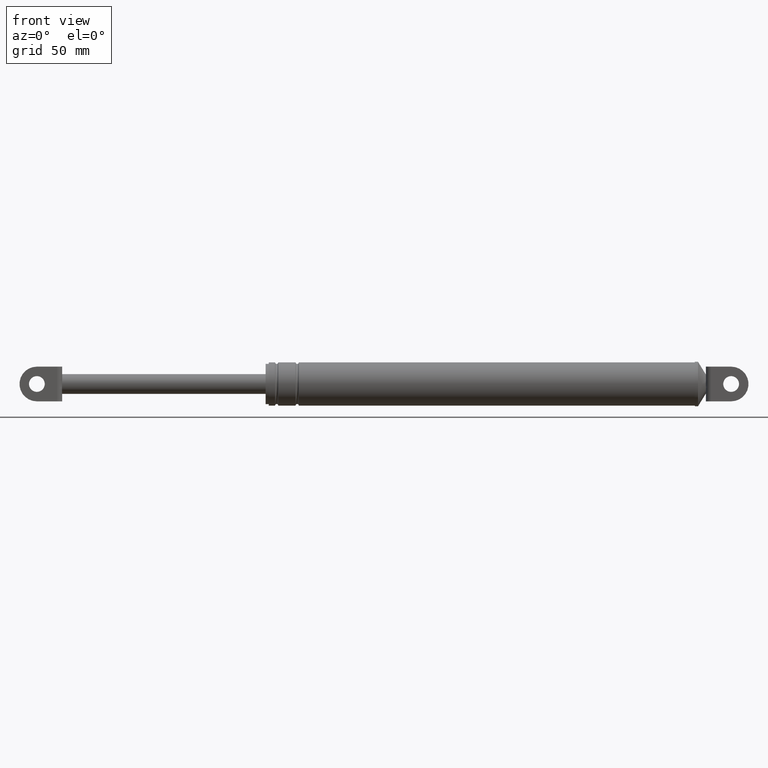
[diagram: clean part render]
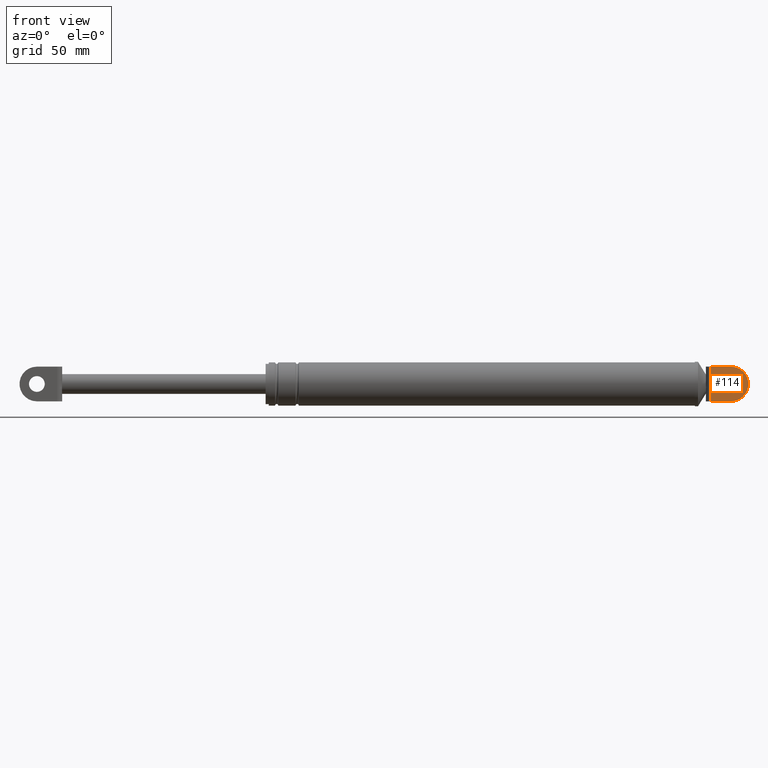
[diagram: same view with one face highlighted and labeled with its STEP entity id]
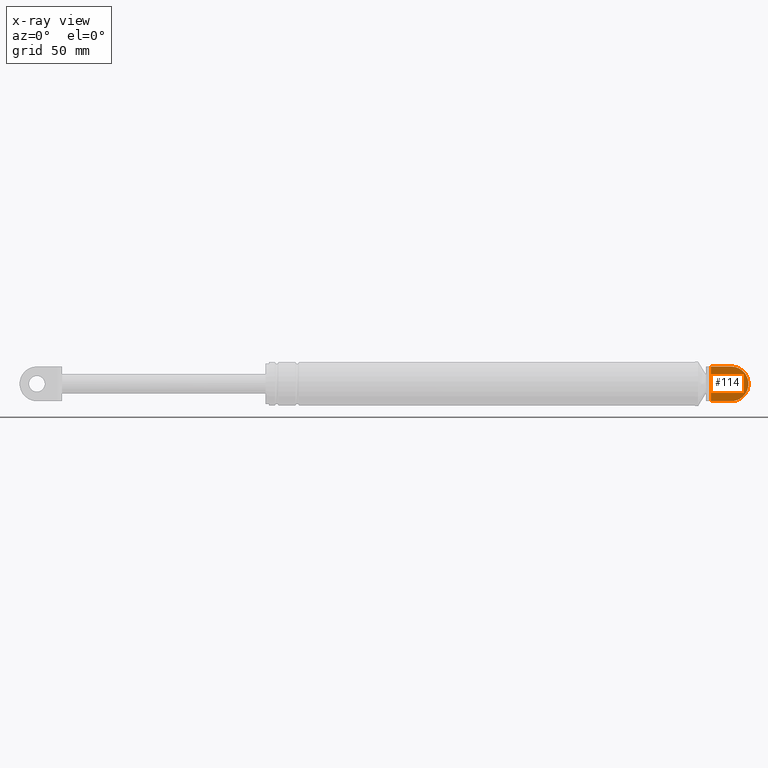
[diagram: x-ray of the same camera — body ghosted, the highlighted face saturated]
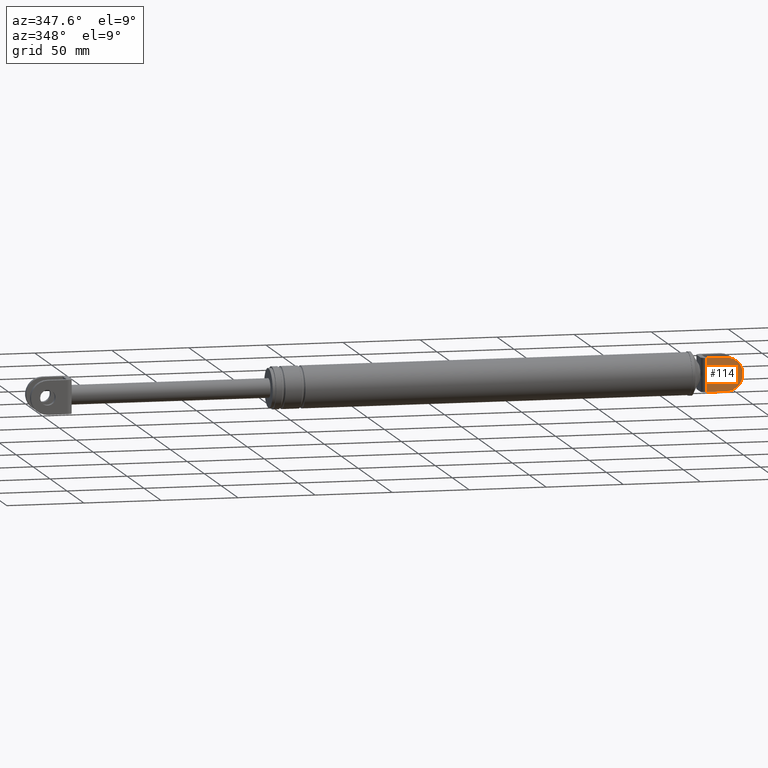
[diagram: same view with one face highlighted and labeled with its STEP entity id]
A machine part, front view. The second image highlights one B-rep face of the part: STEP entity #114.
The next image is the same camera in x-ray: the body ghosted, the highlighted face saturated — about 0% of this face is hidden behind the body in this view.
A second angle (auxiliary view) of the same face is appended — the face is thin or edge-on in the first view.
In plain terms, the highlighted planar face has unit normal (0, -1, 0).
Its self-contained STEP definition (entity closure, byte-faithful):
#114=ADVANCED_FACE('',(#198,#199),#197,.T.);
#197=PLANE('',#840);
#198=FACE_OUTER_BOUND('',#841,.T.);
#199=FACE_BOUND('',#842,.T.);
#837=CARTESIAN_POINT('',(4.15452151137E+002,-8.69999700000E+000,1.76528344356E+002));
#838=DIRECTION('',(0.00000000000E+000,-1.00000000000E+000,0.00000000000E+000));
#839=DIRECTION('',(1.00000000000E+000,0.00000000000E+000,0.00000000000E+000));
#840=AXIS2_PLACEMENT_3D('',#837,#838,#839);
#841=EDGE_LOOP('',(#2119,#2120,#2121,#2122,#2123,#2124));
#842=EDGE_LOOP('',(#2125,#2126));
#2119=ORIENTED_EDGE('',*,*,#2430,.F.);
#2120=ORIENTED_EDGE('',*,*,#2431,.T.);
#2121=ORIENTED_EDGE('',*,*,#2432,.T.);
#2122=ORIENTED_EDGE('',*,*,#2433,.T.);
#2123=ORIENTED_EDGE('',*,*,#2434,.T.);
#2124=ORIENTED_EDGE('',*,*,#2435,.T.);
#2125=ORIENTED_EDGE('',*,*,#2436,.F.);
#2126=ORIENTED_EDGE('',*,*,#2437,.F.);
#2430=EDGE_CURVE('',#2651,#2652,#2653,.T.);
#2431=EDGE_CURVE('',#2651,#2659,#2660,.T.);
#2432=EDGE_CURVE('',#2659,#2666,#2667,.T.);
#2433=EDGE_CURVE('',#2666,#2673,#2674,.T.);
#2434=EDGE_CURVE('',#2673,#2680,#2681,.T.);
#2435=EDGE_CURVE('',#2680,#2652,#2687,.T.);
#2436=EDGE_CURVE('',#2693,#2694,#2695,.T.);
#2437=EDGE_CURVE('',#2694,#2693,#2701,.T.);
#2651=VERTEX_POINT('',#3664);
#2652=VERTEX_POINT('',#3665);
#2653=LINE('',#3666,#3667);
#2659=VERTEX_POINT('',#3669);
#2660=LINE('',#3670,#3671);
#2666=VERTEX_POINT('',#3673);
#2667=(BOUNDED_CURVE() B_SPLINE_CURVE(3,(#3674,#3675,#3676,#3677,#3678,#3679,#3680,#3681,#3682,#3683),.UNSPECIFIED.,.F.,.F.) B_SPLINE_CURVE_WITH_KNOTS((4,2,2,2,4),(0.00000000000E+000,1.19890467989E-003,2.39780935978E-003,3.59671403967E-003,4.79561871955E-003),.UNSPECIFIED.) CURVE() GEOMETRIC_REPRESENTATION_ITEM() RATIONAL_B_SPLINE_CURVE((1.00000000000E+000,1.00000000000E+000,1.00000000000E+000,1.00000000000E+000,1.00000000000E+000,1.00000000000E+000,1.00000000000E+000,1.00000000000E+000,1.00000000000E+000,1.00000000000E+000)) REPRESENTATION_ITEM('') );
#2673=VERTEX_POINT('',#3684);
#2674=LINE('',#3685,#3686);
#2680=VERTEX_POINT('',#3688);
#2681=LINE('',#3689,#3690);
#2687=CIRCLE('',#3695,1.10000000000E+001);
#2693=VERTEX_POINT('',#3696);
#2694=VERTEX_POINT('',#3697);
#2695=CIRCLE('',#3701,5.00000000000E+000);
#2701=CIRCLE('',#3705,5.00000000000E+000);
#3664=CARTESIAN_POINT('',(4.17875390861E+002,-8.69999700000E+000,2.00728345508E+002));
#3665=CARTESIAN_POINT('',(4.30675389901E+002,-8.69999700000E+000,2.00728345508E+002));
#3666=CARTESIAN_POINT('',(4.17875390861E+002,-8.69999700000E+000,2.00728345508E+002));
#3667=VECTOR('',#3668,1.27999990401E+001);
#3668=DIRECTION('',(1.00000000000E+000,0.00000000000E+000,0.00000000000E+000));
#3669=CARTESIAN_POINT('',(4.17875390861E+002,-8.69999700000E+000,1.92126268150E+002));
#3670=CARTESIAN_POINT('',(4.17875390861E+002,-8.69999700000E+000,2.00728345508E+002));
#3671=VECTOR('',#3672,8.60207735738E+000);
#3672=DIRECTION('',(0.00000000000E+000,0.00000000000E+000,-1.00000000000E+000));
#3673=CARTESIAN_POINT('',(4.17875390861E+002,-8.69999700000E+000,1.87330422865E+002));
#3674=CARTESIAN_POINT('',(4.17875390861E+002,-8.69999700000E+000,1.92126268150E+002));
#3675=CARTESIAN_POINT('',(4.17875390861E+002,-8.69999700000E+000,1.91726612064E+002));
#3676=CARTESIAN_POINT('',(4.17863765516E+002,-8.69999700000E+000,1.91327075704E+002));
#3677=CARTESIAN_POINT('',(4.17843906589E+002,-8.69999700000E+000,1.90527968054E+002));
#3678=CARTESIAN_POINT('',(4.17836091008E+002,-8.69999700000E+000,1.90128392458E+002));
#3679=CARTESIAN_POINT('',(4.17836082021E+002,-8.69999700000E+000,1.89329080379E+002));
#3680=CARTESIAN_POINT('',(4.17843892693E+002,-8.69999700000E+000,1.88929322172E+002));
#3681=CARTESIAN_POINT('',(4.17863756165E+002,-8.69999700000E+000,1.88129951572E+002));
#3682=CARTESIAN_POINT('',(4.17875390861E+002,-8.69999700000E+000,1.87730298994E+002));
#3683=CARTESIAN_POINT('',(4.17875390861E+002,-8.69999700000E+000,1.87330422865E+002));
#3684=CARTESIAN_POINT('',(4.17875390861E+002,-8.69999700000E+000,1.78728345508E+002));
#3685=CARTESIAN_POINT('',(4.17875390861E+002,-8.69999700000E+000,1.87330422865E+002));
#3686=VECTOR('',#3687,8.60207735738E+000);
#3687=DIRECTION('',(0.00000000000E+000,0.00000000000E+000,-1.00000000000E+000));
#3688=CARTESIAN_POINT('',(4.30675389901E+002,-8.69999700000E+000,1.78728345508E+002));
#3689=CARTESIAN_POINT('',(4.17875390861E+002,-8.69999700000E+000,1.78728345508E+002));
#3690=VECTOR('',#3691,1.27999990401E+001);
#3691=DIRECTION('',(1.00000000000E+000,0.00000000000E+000,0.00000000000E+000));
#3692=CARTESIAN_POINT('',(4.30675390861E+002,-8.69999700000E+000,1.89728345508E+002));
#3693=DIRECTION('',(0.00000000000E+000,-1.00000000000E+000,-0.00000000000E+000));
#3694=DIRECTION('',(-8.72664973428E-008,0.00000000000E+000,-1.00000000000E+000));
#3695=AXIS2_PLACEMENT_3D('',#3692,#3693,#3694);
#3696=CARTESIAN_POINT('',(4.30675390861E+002,-8.69999700000E+000,1.84728345508E+002));
#3697=CARTESIAN_POINT('',(4.30675390861E+002,-8.69999700000E+000,1.94728345508E+002));
#3698=CARTESIAN_POINT('',(4.30675390861E+002,-8.69999700000E+000,1.89728345508E+002));
#3699=DIRECTION('',(1.25607396695E-016,-1.00000000000E+000,0.00000000000E+000));
#3700=DIRECTION('',(1.22460635382E-016,1.53819616079E-032,1.00000000000E+000));
#3701=AXIS2_PLACEMENT_3D('',#3698,#3699,#3700);
#3702=CARTESIAN_POINT('',(4.30675390861E+002,-8.69999700000E+000,1.89728345508E+002));
#3703=DIRECTION('',(1.25607396695E-016,-1.00000000000E+000,0.00000000000E+000));
#3704=DIRECTION('',(1.22460635382E-016,1.53819616079E-032,1.00000000000E+000));
#3705=AXIS2_PLACEMENT_3D('',#3702,#3703,#3704);